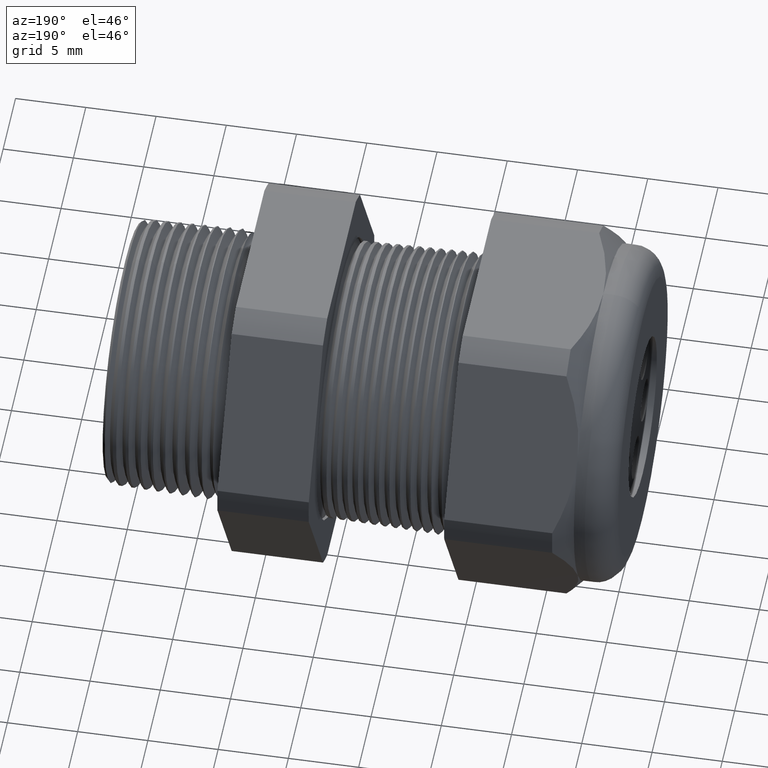
[diagram: clean part render]
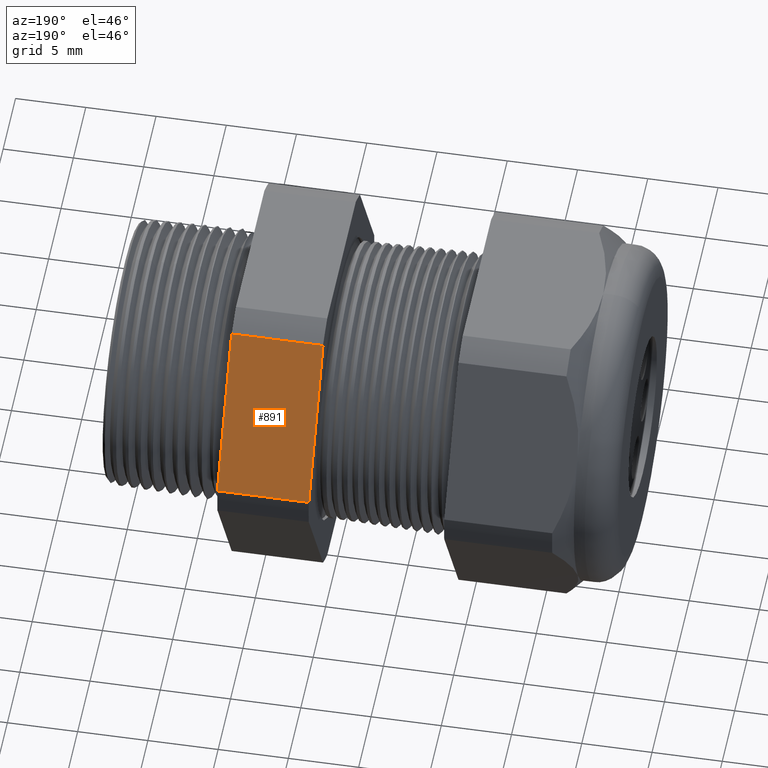
[diagram: same view with one face highlighted and labeled with its STEP entity id]
A machine part, auxiliary view. The second image highlights one B-rep face of the part: STEP entity #891.
In plain terms, the highlighted planar face has unit normal (0, 0.866, 0.5).
Its self-contained STEP definition (entity closure, byte-faithful):
#664 = EDGE_CURVE ( 'NONE', #689, #665, #3157, .T. ) ;
#665 = VERTEX_POINT ( 'NONE', #3204 ) ;
#689 = VERTEX_POINT ( 'NONE', #3219 ) ;
#816 = EDGE_CURVE ( 'NONE', #689, #817, #3450, .T. ) ;
#817 = VERTEX_POINT ( 'NONE', #3446 ) ;
#818 = ORIENTED_EDGE ( 'NONE', *, *, #819, .F. ) ;
#819 = EDGE_CURVE ( 'NONE', #835, #817, #3445, .T. ) ;
#834 = EDGE_CURVE ( 'NONE', #665, #835, #3489, .T. ) ;
#835 = VERTEX_POINT ( 'NONE', #3481 ) ;
#891 = ADVANCED_FACE ( 'NONE', ( #3585 ), #3584, .T. ) ;
#892 = EDGE_LOOP ( 'NONE', ( #893, #894, #895, #818 ) ) ;
#893 = ORIENTED_EDGE ( 'NONE', *, *, #834, .F. ) ;
#894 = ORIENTED_EDGE ( 'NONE', *, *, #664, .F. ) ;
#895 = ORIENTED_EDGE ( 'NONE', *, *, #816, .T. ) ;
#3157 = LINE ( 'NONE', #3207, #3206 ) ;
#3204 = CARTESIAN_POINT ( 'NONE',  ( -0.3100000000000000000, 0.2938165587564948700, 0.4310947921287048800 ) ) ;
#3205 = DIRECTION ( 'NONE',  ( 0.0000000000000000000, -0.4999999999999998300, 0.8660254037844386000 ) ) ;
#3206 = VECTOR ( 'NONE', #3205, 39.37007874015748900 ) ;
#3207 = CARTESIAN_POINT ( 'NONE',  ( -0.3100000000000000000, 0.6420319397786862200, -0.1720319397786860500 ) ) ;
#3219 = CARTESIAN_POINT ( 'NONE',  ( -0.3100000000000000000, 0.5202473208008776600, 0.03890520787129518600 ) ) ;
#3442 = DIRECTION ( 'NONE',  ( 0.0000000000000000000, 0.4999999999999998300, -0.8660254037844386000 ) ) ;
#3443 = VECTOR ( 'NONE', #3442, 39.37007874015748900 ) ;
#3444 = CARTESIAN_POINT ( 'NONE',  ( -0.5659055118110235500, 0.6420319397786862200, -0.1720319397786860500 ) ) ;
#3445 = LINE ( 'NONE', #3444, #3443 ) ;
#3446 = CARTESIAN_POINT ( 'NONE',  ( -0.5659055118110235500, 0.5202473208008776600, 0.03890520787129518600 ) ) ;
#3447 = DIRECTION ( 'NONE',  ( -1.000000000000000000, 0.0000000000000000000, 0.0000000000000000000 ) ) ;
#3448 = VECTOR ( 'NONE', #3447, 39.37007874015748100 ) ;
#3449 = CARTESIAN_POINT ( 'NONE',  ( 0.04000000000000011900, 0.5202473208008776600, 0.03890520787129518600 ) ) ;
#3450 = LINE ( 'NONE', #3449, #3448 ) ;
#3481 = CARTESIAN_POINT ( 'NONE',  ( -0.5659055118110235500, 0.2938165587564948700, 0.4310947921287048800 ) ) ;
#3482 = DIRECTION ( 'NONE',  ( -1.000000000000000000, 0.0000000000000000000, 0.0000000000000000000 ) ) ;
#3483 = VECTOR ( 'NONE', #3482, 39.37007874015748100 ) ;
#3484 = CARTESIAN_POINT ( 'NONE',  ( 0.04000000000000011900, 0.2938165587564948700, 0.4310947921287048800 ) ) ;
#3489 = LINE ( 'NONE', #3484, #3483 ) ;
#3580 = DIRECTION ( 'NONE',  ( 0.0000000000000000000, -0.4999999999999998300, 0.8660254037844386000 ) ) ;
#3581 = DIRECTION ( 'NONE',  ( 0.0000000000000000000, 0.8660254037844387100, 0.4999999999999998900 ) ) ;
#3582 = CARTESIAN_POINT ( 'NONE',  ( 0.04000000000000011900, 0.2938165587564948200, 0.4310947921287048800 ) ) ;
#3583 = AXIS2_PLACEMENT_3D ( 'NONE', #3582, #3581, #3580 ) ;
#3584 = PLANE ( 'NONE',  #3583 ) ;
#3585 = FACE_OUTER_BOUND ( 'NONE', #892, .T. ) ;